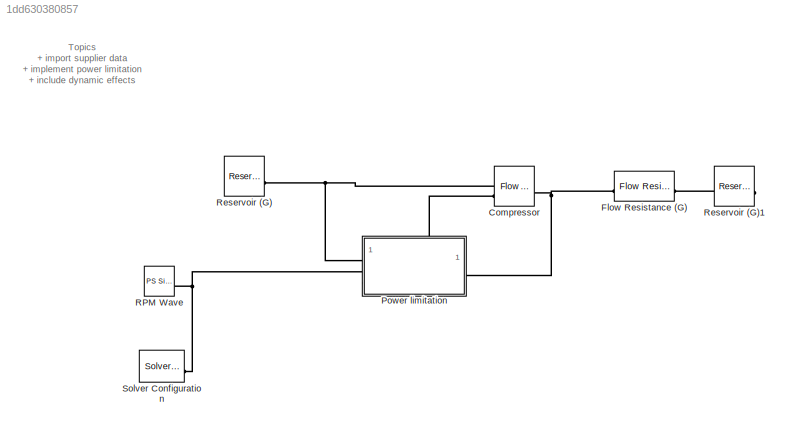
MODEL slx_1dd630380857
KIND model
CONFIG AbsTol = 1e-3
CONFIG EnableMultiTasking = off
CONFIG FixedStep = auto
CONFIG MaxStep = auto
CONFIG MinStep = auto
CONFIG PreLoadFcn = % A scaling factor applied on the RPM to ensure good triangulation for scatteredlookup. \n% This factor is also applied at the input in the model\nscaling_factor = 1000;
CONFIG RelTol = 1e-3
CONFIG SampleTimeConstraint = Unconstrained
CONFIG SolverName = VariableStepAuto
CONFIG StartTime = 0.0
CONFIG StopTime = 10.0
BLOCK [Reference] Compressor  REF=fl_lib/Gas/Sources/Flow Rate Source (G)
  SourceBlock = fl_lib/Gas/Sources/Flow Rate Source (G)
  SourceType = Flow Rate Source (G)
BLOCK [Reference] Flow Resistance (G)  REF=fl_lib/Gas/Elements/Flow Resistance (G)
  SourceBlock = fl_lib/Gas/Elements/Flow Resistance (G)
  SourceType = Flow Resistance (G)
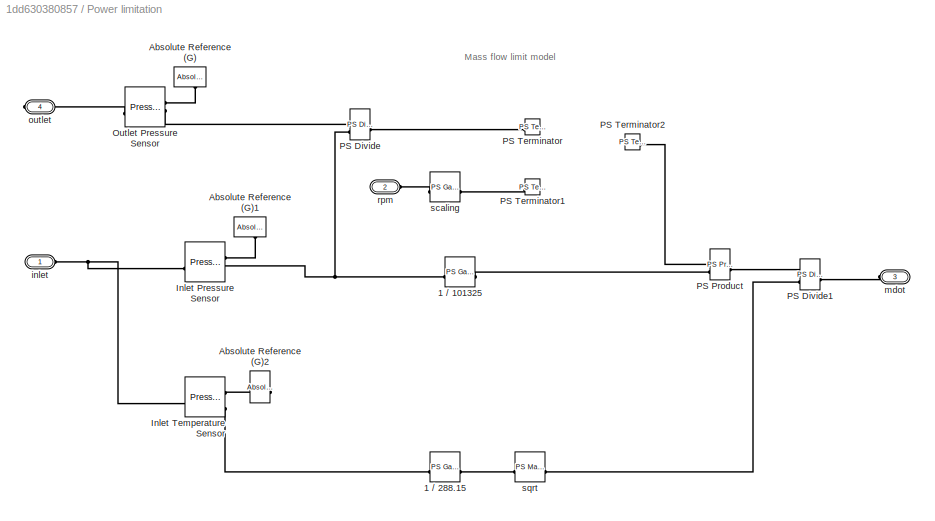
BLOCK [SubSystem] Power limitation
  PortSchema = {"entries":[{"content":{"sides":[{"content":{"connectorIds":["LConn1","LConn2"]},"type":"ConnectorPlacement.EquallySpacedRectSide","uuid":"c43b25db-b903-41d9-8087-185f18a49921"},{"content":{"connectorIds":["RConn1"],"side":"RIGHT"},"type":"ConnectorPlacement.EquallySpacedRectSide","uuid":"5c4d4bfe-dec0-4b74-9a35-5d16307a3dd8"},{"content":{"connectorIds":["LConn3"],"side":"TOP"},"type":"ConnectorPl...<+262ch>
  Tag = PublishSubsystem
BLOCK [Reference] Power limitation/1 // 101325  REF=fl_lib/Physical Signals/Functions/PS Gain
  SourceBlock = fl_lib/Physical Signals/Functions/PS Gain
  SourceType = PS Gain
BLOCK [Reference] Power limitation/1 // 288.15  REF=fl_lib/Physical Signals/Functions/PS Gain
  SourceBlock = fl_lib/Physical Signals/Functions/PS Gain
  SourceType = PS Gain
BLOCK [Reference] Power limitation/Absolute Reference (G)  REF=fl_lib/Gas/Elements/Absolute Reference
(G)
  NameLocation = left
  SourceBlock = fl_lib/Gas/Elements/Absolute Reference\n(G)
  SourceType = Absolute Reference\n(G)
BLOCK [Reference] Power limitation/Absolute Reference (G)1  REF=fl_lib/Gas/Elements/Absolute Reference
(G)
  NameLocation = left
  SourceBlock = fl_lib/Gas/Elements/Absolute Reference\n(G)
  SourceType = Absolute Reference\n(G)
BLOCK [Reference] Power limitation/Absolute Reference (G)2  REF=fl_lib/Gas/Elements/Absolute Reference
(G)
  NameLocation = top
  SourceBlock = fl_lib/Gas/Elements/Absolute Reference\n(G)
  SourceType = Absolute Reference\n(G)
BLOCK [Reference] Power limitation/Inlet Pressure Sensor  REF=fl_lib/Gas/Sensors/Pressure &
Temperature Sensor
(G)
  SourceBlock = fl_lib/Gas/Sensors/Pressure &\nTemperature Sensor\n(G)
  SourceType = Pressure &\nTemperature Sensor\n(G)
BLOCK [Reference] Power limitation/Inlet Temperature Sensor   REF=fl_lib/Gas/Sensors/Pressure &
Temperature Sensor
(G)
  NameLocation = top
  SourceBlock = fl_lib/Gas/Sensors/Pressure &\nTemperature Sensor\n(G)
  SourceType = Pressure &\nTemperature Sensor\n(G)
BLOCK [Reference] Power limitation/Outlet Pressure Sensor  REF=fl_lib/Gas/Sensors/Pressure &
Temperature Sensor
(G)
  SourceBlock = fl_lib/Gas/Sensors/Pressure &\nTemperature Sensor\n(G)
  SourceType = Pressure &\nTemperature Sensor\n(G)
BLOCK [Reference] Power limitation/PS Divide  REF=fl_lib/Physical Signals/Functions/PS Divide
  SourceBlock = fl_lib/Physical Signals/Functions/PS Divide
  SourceType = PS Divide
BLOCK [Reference] Power limitation/PS Divide1  REF=fl_lib/Physical Signals/Functions/PS Divide
  SourceBlock = fl_lib/Physical Signals/Functions/PS Divide
  SourceType = PS Divide
BLOCK [Reference] Power limitation/PS Product  REF=fl_lib/Physical Signals/Functions/PS Product
  SourceBlock = fl_lib/Physical Signals/Functions/PS Product
  SourceType = PS Product
BLOCK [Reference] Power limitation/PS Terminator  REF=fl_lib/Physical Signals/Sinks/PS Terminator
  SourceBlock = fl_lib/Physical Signals/Sinks/PS Terminator
  SourceType = PS Terminator
BLOCK [Reference] Power limitation/PS Terminator1  REF=fl_lib/Physical Signals/Sinks/PS Terminator
  SourceBlock = fl_lib/Physical Signals/Sinks/PS Terminator
  SourceType = PS Terminator
BLOCK [Reference] Power limitation/PS Terminator2  REF=fl_lib/Physical Signals/Sinks/PS Terminator
  SourceBlock = fl_lib/Physical Signals/Sinks/PS Terminator
  SourceType = PS Terminator
BLOCK [PMIOPort] Power limitation/inlet
  Side = Left
BLOCK [PMIOPort] Power limitation/mdot
  Port = 3
  Side = Left
BLOCK [PMIOPort] Power limitation/outlet
  Port = 4
  Side = Right
BLOCK [PMIOPort] Power limitation/rpm
  Port = 2
  Side = Left
BLOCK [Reference] Power limitation/scaling  REF=fl_lib/Physical Signals/Functions/PS Gain
  SourceBlock = fl_lib/Physical Signals/Functions/PS Gain
  SourceType = PS Gain
BLOCK [Reference] Power limitation/sqrt  REF=fl_lib/Physical Signals/Functions/PS Math Function
  SourceBlock = fl_lib/Physical Signals/Functions/PS Math Function
  SourceType = PS Math Function
BLOCK [Reference] RPM Wave  REF=fl_lib/Physical Signals/Sources/PS Sine Wave
  SourceBlock = fl_lib/Physical Signals/Sources/PS Sine Wave
  SourceType = PS Sine Wave
BLOCK [Reference] Reservoir (G)  REF=fl_lib/Gas/Elements/Reservoir (G)
  SourceBlock = fl_lib/Gas/Elements/Reservoir (G)
  SourceType = Reservoir (G)
BLOCK [Reference] Reservoir (G)1  REF=fl_lib/Gas/Elements/Reservoir (G)
  NameLocation = top
  SourceBlock = fl_lib/Gas/Elements/Reservoir (G)
  SourceType = Reservoir (G)
BLOCK [Reference] Solver Configuration  REF=nesl_utility/Solver
Configuration
  SourceBlock = nesl_utility/Solver\nConfiguration
  SourceType = Solver\nConfiguration
ANNOTATION (root): Topics + import supplier data + implement power limitation + include dynamic effects
ANNOTATION Power limitation: Mass flow limit model
PNET net1: Compressor:LConn1 -- Power limitation:LConn1 -- Reservoir (G):LConn1
PLINE Compressor:LConn2 -- Power limitation:LConn3
PNET net2: Compressor:RConn1 -- Flow Resistance (G):LConn1 -- Power limitation:RConn1
PLINE Flow Resistance (G):RConn1 -- Reservoir (G)1:LConn1
PNET net3: Power limitation/1 // 101325:LConn1 -- Power limitation/Inlet Pressure Sensor:RConn2 -- Power limitation/PS Divide:LConn2
PLINE Power limitation/1 // 101325:RConn1 -- Power limitation/PS Product:LConn2
PLINE Power limitation/1 // 288.15:LConn1 -- Power limitation/Inlet Temperature Sensor :RConn3
PLINE Power limitation/1 // 288.15:RConn1 -- Power limitation/sqrt:LConn1
PLINE Power limitation/Absolute Reference (G)1:LConn1 -- Power limitation/Inlet Pressure Sensor:RConn1
PLINE Power limitation/Absolute Reference (G)2:LConn1 -- Power limitation/Inlet Temperature Sensor :RConn1
PLINE Power limitation/Absolute Reference (G):LConn1 -- Power limitation/Outlet Pressure Sensor:RConn1
PNET net4: Power limitation/Inlet Pressure Sensor:LConn1 -- Power limitation/Inlet Temperature Sensor :LConn1 -- Power limitation/inlet:RConn1
PLINE Power limitation/Outlet Pressure Sensor:LConn1 -- Power limitation/outlet:RConn1
PLINE Power limitation/Outlet Pressure Sensor:RConn2 -- Power limitation/PS Divide:LConn1
PLINE Power limitation/PS Divide1:LConn1 -- Power limitation/PS Product:RConn1
PLINE Power limitation/PS Divide1:LConn2 -- Power limitation/sqrt:RConn1
PLINE Power limitation/PS Divide1:RConn1 -- Power limitation/mdot:RConn1
PLINE Power limitation/PS Divide:RConn1 -- Power limitation/PS Terminator:LConn1
PLINE Power limitation/PS Product:LConn1 -- Power limitation/PS Terminator2:LConn1
PLINE Power limitation/PS Terminator1:LConn1 -- Power limitation/scaling:RConn1
PLINE Power limitation/rpm:RConn1 -- Power limitation/scaling:LConn1
PNET net5: Power limitation:LConn2 -- RPM Wave:RConn1 -- Solver Configuration:RConn1
note: PNET lines group multi-terminal physical nets as a canonical sorted terminal list (undirected conserving connections); 2-terminal nets keep the pairwise PLINE form
